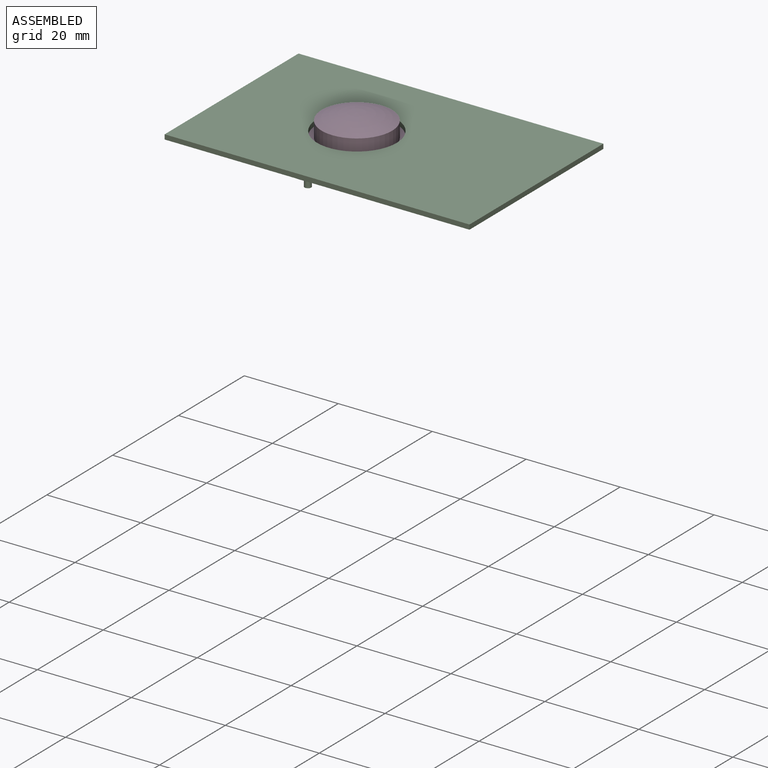
[diagram: assembled view]
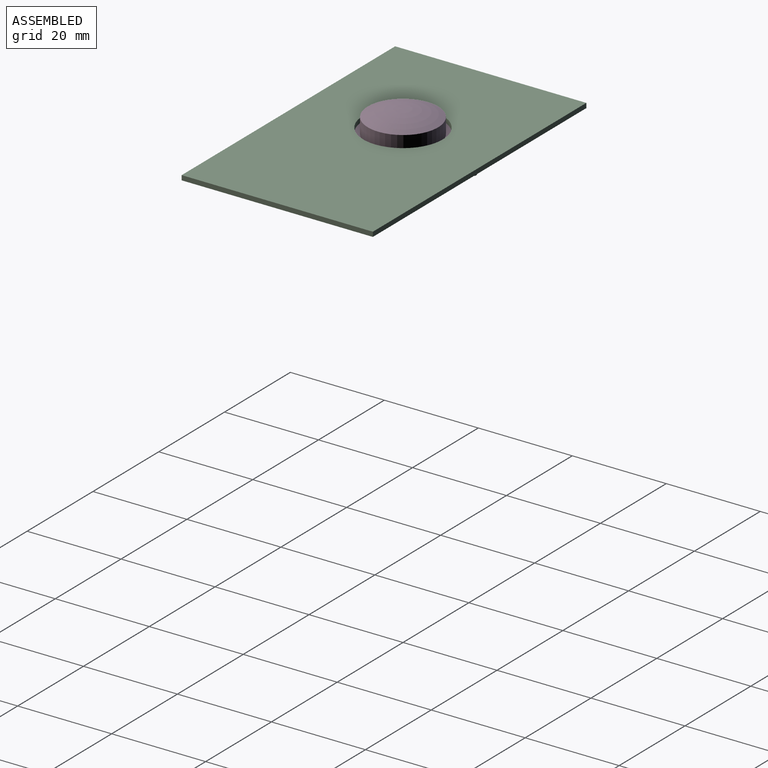
[diagram: assembled view, second angle]
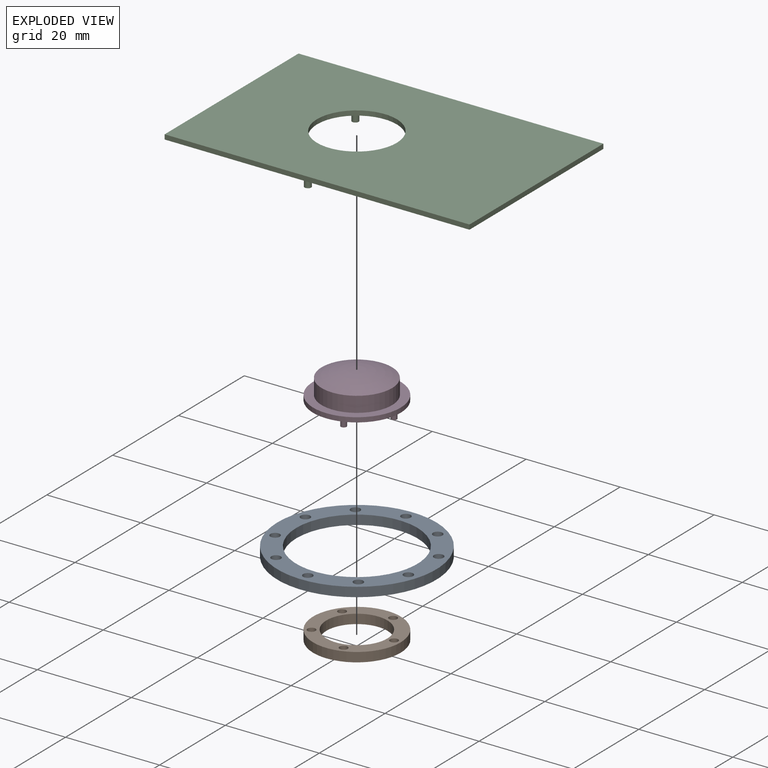
[diagram: exploded view]
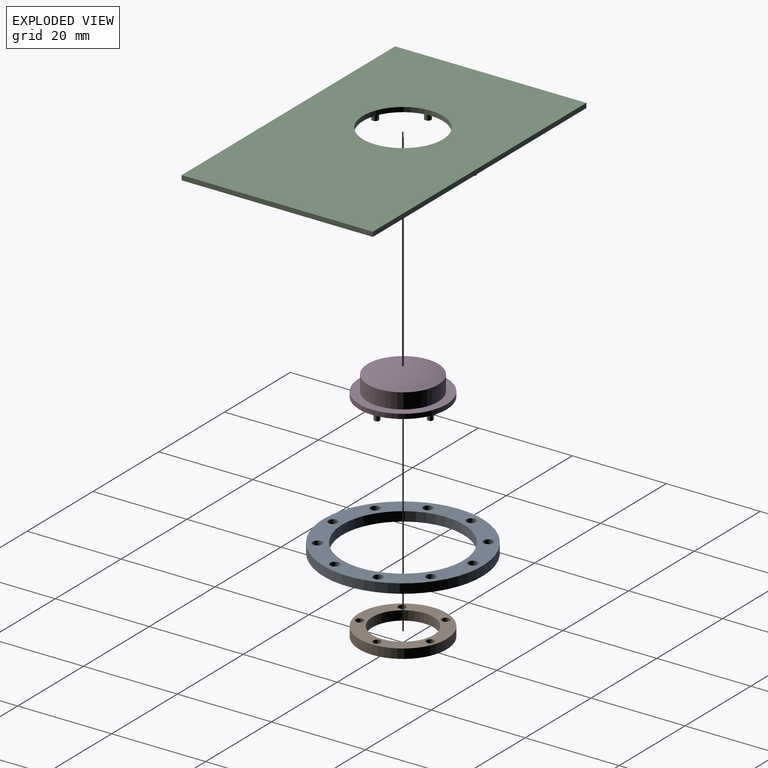
[diagram: exploded view, second angle]
ASSEMBLY  parts=4 mates=4
PART A: 14 faces, bbox 33.8x33.8x2 mm
  f0: cylinder r=12.91mm len=25.81mm, axis (0,0,1), area 162.2mm2, adj f12,f13
  f1: cylinder r=1mm len=2mm, axis (0,0,1), area 12.6mm2, adj f12,f13
  f2: cylinder r=1mm len=2mm, axis (0,0,1), area 12.6mm2, adj f12,f13
  f3: cylinder r=1mm len=2mm, axis (0,0,1), area 12.6mm2, adj f12,f13
  f4: cylinder r=1mm len=2mm, axis (0,0,1), area 12.6mm2, adj f12,f13
  f5: cylinder r=1mm len=2mm, axis (0,0,1), area 12.6mm2, adj f12,f13
  f6: cylinder r=1mm len=2mm, axis (0,0,1), area 12.6mm2, adj f12,f13
  f7: cylinder r=1mm len=2mm, axis (0,0,1), area 12.6mm2, adj f12,f13
  f8: cylinder r=1mm len=2mm, axis (0,0,1), area 12.6mm2, adj f12,f13
  f9: cylinder r=1mm len=2mm, axis (0,0,1), area 12.6mm2, adj f12,f13
  f10: cylinder r=1mm len=2mm, axis (0,0,1), area 12.6mm2, adj f12,f13
  f11: cylinder r=16.91mm len=33.81mm, axis (0,0,1), area 212.5mm2, adj f12,f13
  f12: plane 33.81x33.81mm, normal (0,0,-1), area 343.2mm2, adj f0,f1,f2,f3,f4,f5,f6,f7
  f13: plane 33.81x33.81mm, normal (0,0,1), area 343.2mm2, adj f0,f1,f2,f3,f4,f5,f6,f7
PART B: 9 faces, bbox 18.6x18.6x2 mm
  f0: cylinder r=6.5mm len=13mm, axis (0,0,1), area 81.7mm2, adj f7,f8
  f1: cylinder r=0.85mm len=2mm, axis (0,0,1), area 10.7mm2, adj f7,f8
  f2: cylinder r=0.85mm len=2mm, axis (0,0,1), area 10.7mm2, adj f7,f8
  f3: cylinder r=0.85mm len=2mm, axis (0,0,1), area 10.7mm2, adj f7,f8
  f4: cylinder r=0.85mm len=2mm, axis (0,0,1), area 10.7mm2, adj f7,f8
  f5: cylinder r=0.85mm len=2mm, axis (0,0,1), area 10.7mm2, adj f7,f8
  f6: cylinder r=9.31mm len=18.63mm, axis (0,0,1), area 117mm2, adj f7,f8
  f7: plane 18.63x18.63mm, normal (0,0,-1), area 128.4mm2, adj f0,f1,f2,f3,f4,f5,f6
  f8: plane 18.63x18.63mm, normal (0,0,1), area 128.4mm2, adj f0,f1,f2,f3,f4,f5,f6
PART C: 27 faces, bbox 64.9x40.7x5 mm
  f0: plane 64.88x1mm, normal (0,1,0), area 64.9mm2, adj f1,f4,f5,f6
  f1: plane 40.69x1mm, normal (-1,0,0), area 40.7mm2, adj f0,f2,f5,f6
  f2: plane 64.88x1mm, normal (0,-1,0), area 64.9mm2, adj f1,f4,f5,f6
  f3: cylinder r=8.5mm len=17mm, axis (0,0,-1), area 53.4mm2, adj f5,f6
  f4: plane 40.69x1mm, normal (1,0,0), area 40.7mm2, adj f0,f2,f5,f6
  f5: plane 64.88x40.69mm, normal (0,0,1), area 2412.9mm2, adj f0,f1,f2,f3,f4
  f6: plane 64.88x40.69mm, normal (0,0,-1), area 2397.5mm2, adj f0,f1,f2,f3,f4,f7,f9,f11
  f7: cylinder r=0.7mm len=4mm, axis (0,0,1), area 17.6mm2, adj f6,f8
  f8: plane 1.4x1.4mm, normal (0,0,-1), area 1.5mm2, adj f7
  f9: cylinder r=0.7mm len=4mm, axis (0,0,1), area 17.6mm2, adj f6,f10
  f10: plane 1.4x1.4mm, normal (0,0,-1), area 1.5mm2, adj f9
  f11: cylinder r=0.7mm len=4mm, axis (0,0,1), area 17.6mm2, adj f6,f12
  f12: plane 1.4x1.4mm, normal (0,0,-1), area 1.5mm2, adj f11
  f13: cylinder r=0.7mm len=4mm, axis (0,0,1), area 17.6mm2, adj f6,f14
  f14: plane 1.4x1.4mm, normal (0,0,-1), area 1.5mm2, adj f13
  f15: cylinder r=0.7mm len=4mm, axis (0,0,1), area 17.6mm2, adj f6,f16
  f16: plane 1.4x1.4mm, normal (0,0,-1), area 1.5mm2, adj f15
  f17: cylinder r=0.7mm len=4mm, axis (0,0,1), area 17.6mm2, adj f6,f18
  f18: plane 1.4x1.4mm, normal (0,0,-1), area 1.5mm2, adj f17
  f19: cylinder r=0.7mm len=4mm, axis (0,0,1), area 17.6mm2, adj f6,f20
  f20: plane 1.4x1.4mm, normal (0,0,-1), area 1.5mm2, adj f19
  f21: cylinder r=0.7mm len=4mm, axis (0,0,1), area 17.6mm2, adj f6,f22
  f22: plane 1.4x1.4mm, normal (0,0,-1), area 1.5mm2, adj f21
  f23: cylinder r=0.7mm len=4mm, axis (0,0,1), area 17.6mm2, adj f6,f24
  f24: plane 1.4x1.4mm, normal (0,0,-1), area 1.5mm2, adj f23
  f25: cylinder r=0.7mm len=4mm, axis (0,0,1), area 17.6mm2, adj f6,f26
  f26: plane 1.4x1.4mm, normal (0,0,-1), area 1.5mm2, adj f25
PART D: 17 faces, bbox 18.6x18.6x7.4 mm
  f0: cylinder r=7.5mm len=15mm, axis (0,0,-1), area 154.5mm2, adj f1,f6
  f1: torus R=0.33mm, axis (0,0,-1), area 185mm2, adj f0
  f2: torus R=0.33mm, axis (0,0,-1), area 137.8mm2, adj f3
  f3: cylinder r=6.5mm len=13mm, axis (0,0,-1), area 148.1mm2, adj f2,f4
  f4: plane 18.63x18.63mm, normal (0,0,-1), area 134.1mm2, adj f3,f5,f7,f9,f11,f13,f15
  f5: cylinder r=9.31mm len=18.63mm, axis (0,0,-1), area 58.5mm2, adj f4,f6
  f6: plane 18.63x18.63mm, normal (0,0,1), area 95.7mm2, adj f0,f5
  f7: cylinder r=0.6mm len=1.5mm, axis (0,0,1), area 5.7mm2, adj f4,f8
  f8: plane 1.2x1.2mm, normal (0,0,-1), area 1.1mm2, adj f7
  f9: cylinder r=0.6mm len=1.5mm, axis (0,0,1), area 5.7mm2, adj f4,f10
  f10: plane 1.2x1.2mm, normal (0,0,-1), area 1.1mm2, adj f9
  f11: cylinder r=0.6mm len=1.5mm, axis (0,0,1), area 5.7mm2, adj f4,f12
  f12: plane 1.2x1.2mm, normal (0,0,-1), area 1.1mm2, adj f11
  f13: cylinder r=0.6mm len=1.5mm, axis (0,0,1), area 5.7mm2, adj f4,f14
  f14: plane 1.2x1.2mm, normal (0,0,-1), area 1.1mm2, adj f13
  f15: cylinder r=0.6mm len=1.5mm, axis (0,0,1), area 5.7mm2, adj f4,f16
  f16: plane 1.2x1.2mm, normal (0,0,-1), area 1.1mm2, adj f15
PLACE A t=(0,0,4)mm
PLACE B rot(axis=(0,0,1),18deg) t=(0,0,0.32)mm
PLACE C t=(0,0,-3.28)mm fixed
PLACE D rot(axis=(0,0,1),90deg) t=(0,0,-2.23)mm
MATE cylindrical D.f11 <-> B.f1  axis (0,0,-1) through (-6.4,-4.65,-6.01)mm
MATE cylindrical D.f15 <-> B.f3  axis (0,0,-1) through (2.44,7.52,-6.01)mm
MATE slider C.f7 <-> A.f10  axis (0,0,-1) through (0,-14.91,-7.28)mm
MATE slider C.f3 <-> D.f0  axis (0,0,-1) through (0,0,-3.28)mm
